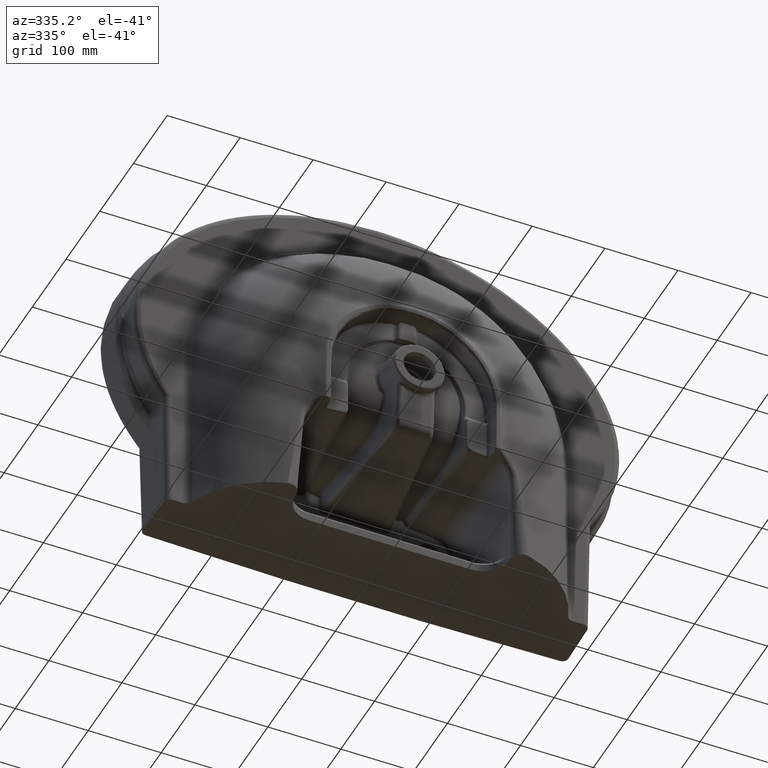
[diagram: clean part render]
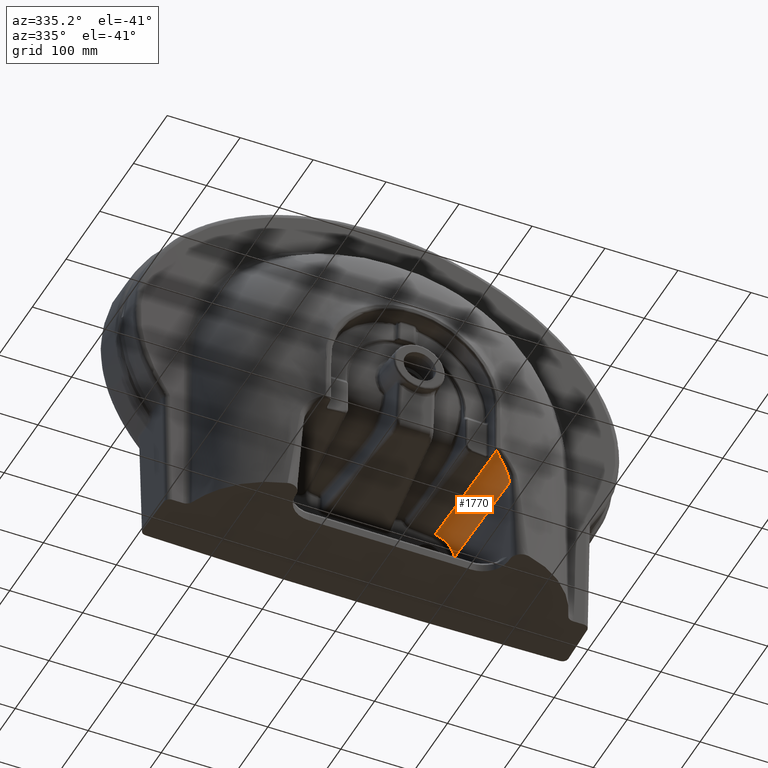
[diagram: same view with one face highlighted and labeled with its STEP entity id]
A machine part, auxiliary view. The second image highlights one B-rep face of the part: STEP entity #1770.
In plain terms, the highlighted cylindrical surface (edge-blend (fillet) strip) has radius 30 mm, axis along (-0.0489, 0.9967, -0.0649).
Its self-contained STEP definition (entity closure, byte-faithful):
#149=CYLINDRICAL_SURFACE('',#7355,30.);
#405=LINE('',#18797,#554);
#406=LINE('',#19002,#555);
#554=VECTOR('',#7801,1.);
#555=VECTOR('',#7804,1.);
#1150=B_SPLINE_CURVE_WITH_KNOTS('',3,(#18885,#18886,#18887,#18888,#18889,
#18890,#18891,#18892,#18893,#18894,#18895,#18896,#18897,#18898,#18899,#18900,
#18901,#18902,#18903,#18904,#18905,#18906,#18907),.UNSPECIFIED.,.F.,.F.,
(4,2,2,2,2,2,2,2,1,2,2,4),(0.,0.124999999999996,0.187499999999995,0.218749999999994,
0.249999999999994,0.374999999999997,0.4375,0.468750000000001,0.484375000000002,
0.492187500000003,0.500000000000003,1.),.UNSPECIFIED.);
#1151=B_SPLINE_CURVE_WITH_KNOTS('',3,(#18960,#18961,#18962,#18963,#18964,
#18965,#18966,#18967,#18968,#18969,#18970,#18971,#18972,#18973,#18974,#18975,
#18976,#18977,#18978,#18979,#18980,#18981,#18982,#18983,#18984,#18985,#18986,
#18987,#18988,#18989,#18990,#18991,#18992,#18993,#18994,#18995),
 .UNSPECIFIED.,.F.,.F.,(4,2,2,2,2,2,2,2,2,2,2,2,2,2,2,2,2,4),(0.,0.0624999999999983,
0.0937499999999971,0.109374999999996,0.124999999999995,0.187499999999994,
0.218749999999994,0.234374999999994,0.249999999999994,0.374999999999997,
0.437499999999998,0.468749999999999,0.499999999999999,0.625,0.750000000000001,
0.875,0.9375,1.),.UNSPECIFIED.);
#1770=ADVANCED_FACE('',(#2235),#149,.F.);
#2235=FACE_OUTER_BOUND('',#2716,.T.);
#2716=EDGE_LOOP('',(#3905,#3906,#3907,#3908,#3909));
#3061=(
BOUNDED_CURVE()
B_SPLINE_CURVE(3,(#18997,#18998,#18999,#19000),.UNSPECIFIED.,.F.,.F.)
B_SPLINE_CURVE_WITH_KNOTS((4,4),(0.,1.),.UNSPECIFIED.)
CURVE()
GEOMETRIC_REPRESENTATION_ITEM()
RATIONAL_B_SPLINE_CURVE((1.155166371075,1.155166371075,1.155166371075,1.155166371075))
REPRESENTATION_ITEM('')
);
#3905=ORIENTED_EDGE('',*,*,#6401,.F.);
#3906=ORIENTED_EDGE('',*,*,#6408,.T.);
#3907=ORIENTED_EDGE('',*,*,#6409,.F.);
#3908=ORIENTED_EDGE('',*,*,#6410,.T.);
#3909=ORIENTED_EDGE('',*,*,#6407,.F.);
#5602=VERTEX_POINT('',#18796);
#5603=VERTEX_POINT('',#18798);
#5604=VERTEX_POINT('',#18884);
#5605=VERTEX_POINT('',#18996);
#5606=VERTEX_POINT('',#19001);
#6401=EDGE_CURVE('',#5602,#5603,#405,.T.);
#6407=EDGE_CURVE('',#5603,#5604,#1150,.T.);
#6408=EDGE_CURVE('',#5602,#5605,#1151,.T.);
#6409=EDGE_CURVE('',#5606,#5605,#3061,.T.);
#6410=EDGE_CURVE('',#5606,#5604,#406,.T.);
#7355=AXIS2_PLACEMENT_3D('',#19003,#7805,#7806);
#7801=DIRECTION('',(-0.0489026810547201,0.996690230720858,-0.0649392929686203));
#7804=DIRECTION('',(-0.0489026763562279,0.996690223876257,-0.0649394015578772));
#7805=DIRECTION('',(-0.0489026754753889,0.996690224466278,-0.0649393931655486));
#7806=DIRECTION('',(-0.104273837184695,-0.0697564737441219,-0.992099290015655));
#18796=CARTESIAN_POINT('',(140.8734944041,-11.37369035298,-109.6727886985));
#18797=CARTESIAN_POINT('',(140.873494404058,-11.3736903529822,-109.672788698502));
#18798=CARTESIAN_POINT('',(133.6044942758,136.775460916,-119.3254407113));
#18884=CARTESIAN_POINT('',(106.8844283453,135.8816539767,-91.03810249014));
#18885=CARTESIAN_POINT('',(133.604341997296,136.775452925277,-119.325448708198));
#18886=CARTESIAN_POINT('',(133.469417694196,136.72891952663,-116.712495879655));
#18887=CARTESIAN_POINT('',(133.00001862051,136.679166440011,-114.227778934461));
#18888=CARTESIAN_POINT('',(131.934788454899,136.604160774135,-110.797420003126));
#18889=CARTESIAN_POINT('',(131.519904194268,136.579062226417,-109.702134017721));
#18890=CARTESIAN_POINT('',(130.825218396338,136.541605001713,-108.137227869283));
#18891=CARTESIAN_POINT('',(130.581565199334,136.529149710597,-107.628567238719));
#18892=CARTESIAN_POINT('',(130.073077341807,136.504347237,-106.637773320537));
#18893=CARTESIAN_POINT('',(129.792336772755,136.491287501265,-106.128429358471));
#18894=CARTESIAN_POINT('',(128.501847618789,136.43348179235,-103.921051503359));
#18895=CARTESIAN_POINT('',(127.304270325454,136.386845992722,-102.288386049296));
#18896=CARTESIAN_POINT('',(125.318576963035,136.318024542659,-100.072766105377));
#18897=CARTESIAN_POINT('',(124.625183853932,136.295268299532,-99.3729373786898));
#18898=CARTESIAN_POINT('',(123.545165703243,136.261585267203,-98.3840927817006));
#18899=CARTESIAN_POINT('',(123.178521075213,136.25043225925,-98.0646023328356));
#18900=CARTESIAN_POINT('',(122.619539890191,136.233833528642,-97.6007920181146));
#18901=CARTESIAN_POINT('',(122.337795194305,136.225566840184,-97.3727428244115));
#18902=CARTESIAN_POINT('',(122.052841410614,136.217352522299,-97.1505189783414));
#18903=CARTESIAN_POINT('',(121.862177876922,136.211888309798,-97.0036686404352));
#18904=CARTESIAN_POINT('',(121.73768907258,136.208346088103,-96.909252047376));
#18905=CARTESIAN_POINT('',(117.36924303241,136.08459835928,-93.6278423501043));
#18906=CARTESIAN_POINT('',(112.198112233172,135.970455871791,-91.6028243240309));
#18907=CARTESIAN_POINT('',(106.884427263813,135.881653253188,-91.0381127802299));
#18960=CARTESIAN_POINT('',(140.873494404054,-11.3736903529824,-109.672788698502));
#18961=CARTESIAN_POINT('',(140.827659146533,-11.4680963601163,-108.703655135638));
#18962=CARTESIAN_POINT('',(140.736058557854,-11.5702867073524,-107.740267523209));
#18963=CARTESIAN_POINT('',(140.532256785522,-11.735555745236,-106.310209160242));
#18964=CARTESIAN_POINT('',(140.453262213153,-11.792642132084,-105.836023156616));
#18965=CARTESIAN_POINT('',(140.318513461677,-11.8813002250872,-105.12925931842));
#18966=CARTESIAN_POINT('',(140.270888085909,-11.9113576405942,-104.894423642805));
#18967=CARTESIAN_POINT('',(140.170278947108,-11.9724870710576,-104.426381166175));
#18968=CARTESIAN_POINT('',(140.125287406604,-11.9990219517766,-104.226551805015));
#18969=CARTESIAN_POINT('',(139.807167938025,-12.1796164201454,-102.89800819556));
#18970=CARTESIAN_POINT('',(139.51029094031,-12.3277422774462,-101.90722661005));
#18971=CARTESIAN_POINT('',(139.029873802053,-12.553995201579,-100.528913495576));
#18972=CARTESIAN_POINT('',(138.863844286866,-12.6300888913482,-100.087401990703));
#18973=CARTESIAN_POINT('',(138.609147837875,-12.745060598116,-99.451614234224));
#18974=CARTESIAN_POINT('',(138.523304317672,-12.7835230121826,-99.2440959591669));
#18975=CARTESIAN_POINT('',(138.350226182662,-12.8606943647178,-98.8377885162564));
#18976=CARTESIAN_POINT('',(138.277054561081,-12.8931782759855,-98.670187416141));
#18977=CARTESIAN_POINT('',(137.361261333786,-13.2985566931776,-96.6391916472006));
#18978=CARTESIAN_POINT('',(136.513696337722,-13.669742712733,-95.1637436149257));
#18979=CARTESIAN_POINT('',(135.018326630571,-14.3805253368786,-92.9620927388336));
#18980=CARTESIAN_POINT('',(134.49849852805,-14.6353269375123,-92.2629360400836));
#18981=CARTESIAN_POINT('',(133.694652252802,-15.0439472653478,-91.2662462783487));
#18982=CARTESIAN_POINT('',(133.42268069752,-15.18455662617,-90.942680288813));
#18983=CARTESIAN_POINT('',(132.871948055562,-15.4745109012306,-90.3127535788366));
#18984=CARTESIAN_POINT('',(132.616095088339,-15.611352147825,-90.0306270473197));
#18985=CARTESIAN_POINT('',(131.093791909739,-16.4422545609795,-88.4201842652411));
#18986=CARTESIAN_POINT('',(129.819970278137,-17.1903560270944,-87.2870395661875));
#18987=CARTESIAN_POINT('',(127.242948124682,-18.8477860838459,-85.308451283777));
#18988=CARTESIAN_POINT('',(125.816346299143,-19.8423101516329,-84.3796958899368));
#18989=CARTESIAN_POINT('',(123.025433625936,-21.9900228971122,-82.8474134608025));
#18990=CARTESIAN_POINT('',(121.589338482049,-23.1880309429831,-82.1900430915924));
#18991=CARTESIAN_POINT('',(119.295102861005,-25.3116279617386,-81.3481096971019));
#18992=CARTESIAN_POINT('',(118.463987295111,-26.1143318011871,-81.0808373532722));
#18993=CARTESIAN_POINT('',(116.935226715996,-27.6674938917561,-80.6538670655185));
#18994=CARTESIAN_POINT('',(116.21278304095,-28.4413411463008,-80.4832443019345));
#18995=CARTESIAN_POINT('',(115.536352597257,-29.2115449077254,-80.3445917010729));
#18996=CARTESIAN_POINT('',(115.5363509611,-29.21154584862,-80.34460490982));
#18997=CARTESIAN_POINT('',(114.9846255175,-29.2092665131,-80.28160144238));
#18998=CARTESIAN_POINT('',(115.1687235365,-29.21003843023,-80.30089578953));
#18999=CARTESIAN_POINT('',(115.3526448222,-29.21079846105,-80.32189470841));
#19000=CARTESIAN_POINT('',(115.5363529208,-29.21154644735,-80.34459520823));
#19001=CARTESIAN_POINT('',(114.98462619,-29.20926956465,-80.28159508133));
#19002=CARTESIAN_POINT('',(114.98462619,-29.20926956465,-80.28159508133));
#19003=CARTESIAN_POINT('',(112.0829685937,-35.91945028062,-109.7437192068));